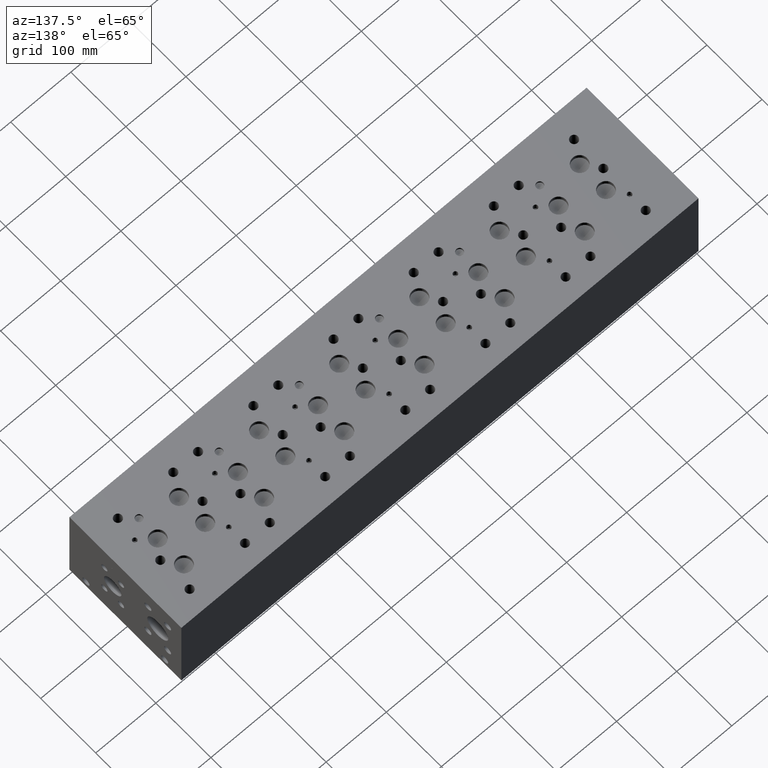
[diagram: clean part render]
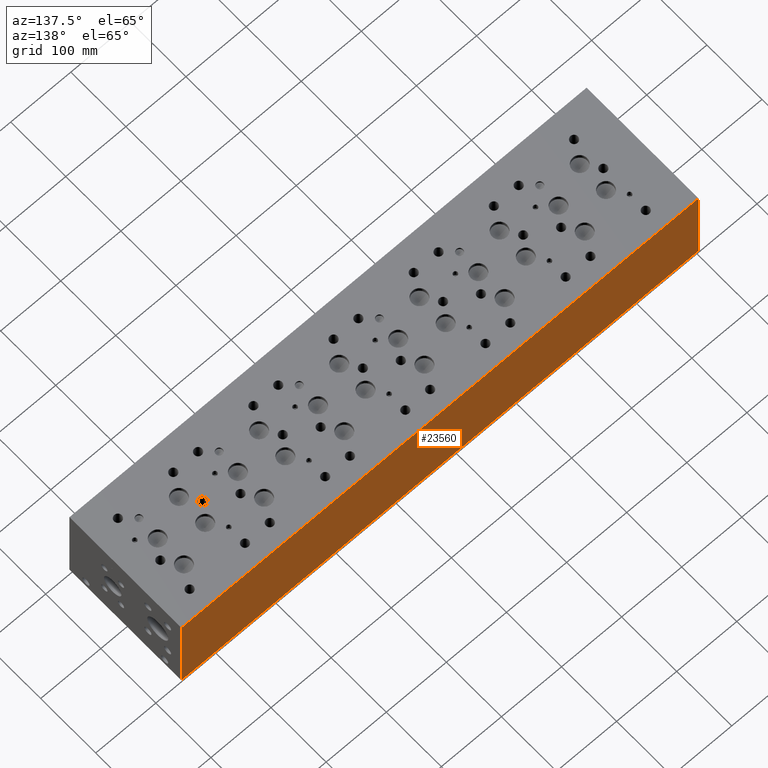
[diagram: same view with one face highlighted and labeled with its STEP entity id]
A machine part, auxiliary view. The second image highlights one B-rep face of the part: STEP entity #23560.
In plain terms, the highlighted planar face has unit normal (0, 1, 0).
Its self-contained STEP definition (entity closure, byte-faithful):
#3701=FACE_OUTER_BOUND('',#5204,.T.);
#5204=EDGE_LOOP('',(#20944,#20945,#20946,#20947));
#6571=LINE('',#37900,#8397);
#6631=LINE('',#38205,#8457);
#7111=LINE('',#41176,#8937);
#7112=LINE('',#41177,#8938);
#8397=VECTOR('',#28005,10.);
#8457=VECTOR('',#28151,10.);
#8937=VECTOR('',#31517,10.);
#8938=VECTOR('',#31518,10.);
#10195=VERTEX_POINT('',#37897);
#10196=VERTEX_POINT('',#37899);
#10269=VERTEX_POINT('',#38201);
#10270=VERTEX_POINT('',#38203);
#13139=EDGE_CURVE('',#10195,#10196,#6571,.T.);
#13239=EDGE_CURVE('',#10269,#10270,#6631,.T.);
#14586=EDGE_CURVE('',#10195,#10269,#7111,.T.);
#14587=EDGE_CURVE('',#10196,#10270,#7112,.T.);
#20944=ORIENTED_EDGE('',*,*,#14586,.T.);
#20945=ORIENTED_EDGE('',*,*,#13239,.T.);
#20946=ORIENTED_EDGE('',*,*,#14587,.F.);
#20947=ORIENTED_EDGE('',*,*,#13139,.F.);
#21689=PLANE('',#25614);
#23560=ADVANCED_FACE('',(#3701),#21689,.T.);
#25614=AXIS2_PLACEMENT_3D('',#41175,#31515,#31516);
#28005=DIRECTION('',(0.,0.,1.));
#28151=DIRECTION('',(0.,0.,1.));
#31515=DIRECTION('center_axis',(0.,1.,0.));
#31516=DIRECTION('ref_axis',(-1.,0.,0.));
#31517=DIRECTION('',(-1.,0.,0.));
#31518=DIRECTION('',(-1.,0.,0.));
#37897=CARTESIAN_POINT('',(860.425,203.2,0.));
#37899=CARTESIAN_POINT('',(860.425,203.2,152.4));
#37900=CARTESIAN_POINT('',(860.425,203.2,0.));
#38201=CARTESIAN_POINT('',(0.,203.2,0.));
#38203=CARTESIAN_POINT('',(0.,203.2,152.4));
#38205=CARTESIAN_POINT('',(0.,203.2,0.));
#41175=CARTESIAN_POINT('Origin',(860.425,203.2,0.));
#41176=CARTESIAN_POINT('',(860.425,203.2,0.));
#41177=CARTESIAN_POINT('',(860.425,203.2,152.4));